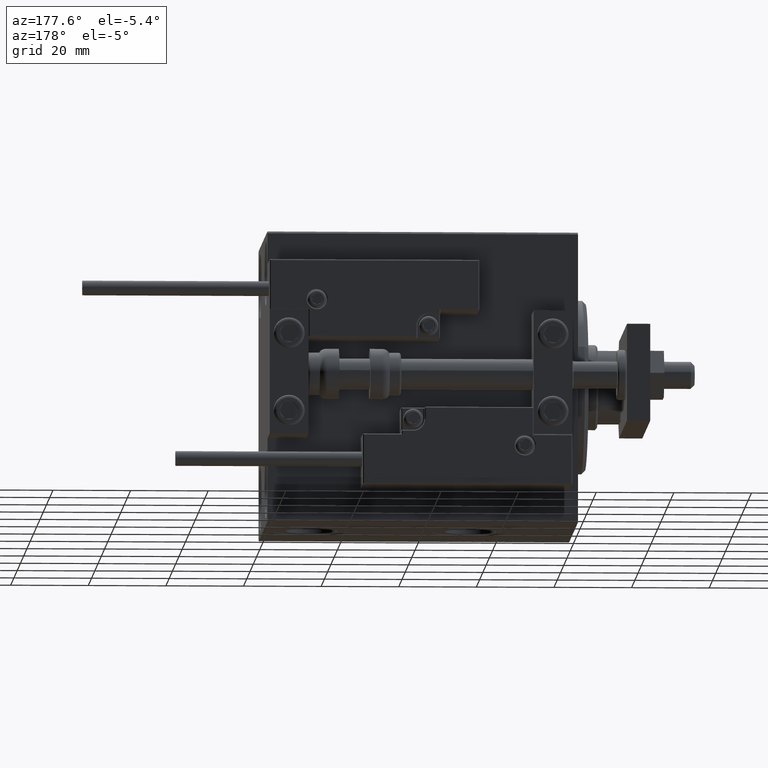
[diagram: clean part render]
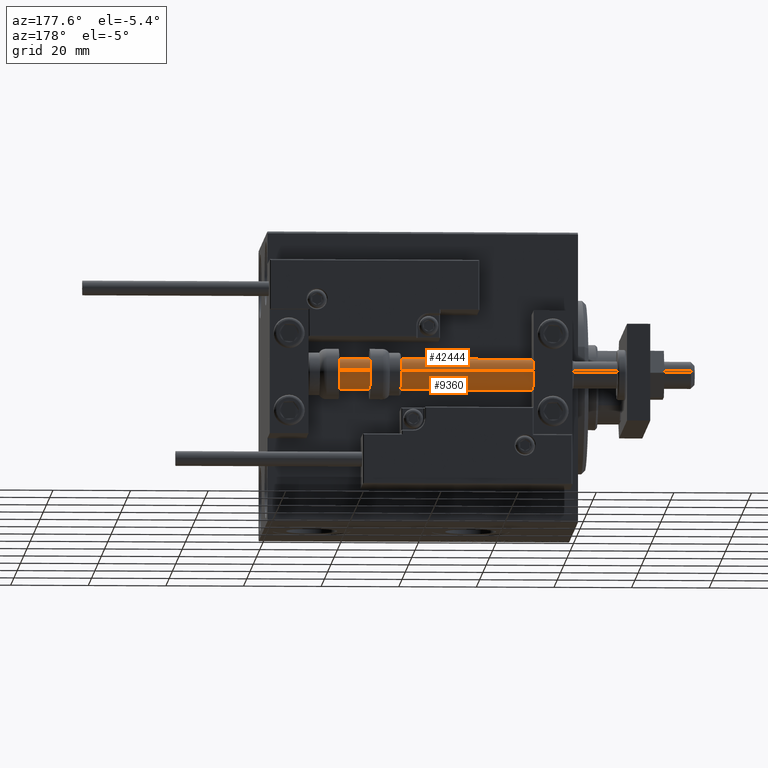
[diagram: same view with one multi-face feature highlighted, each face labeled with its STEP entity id]
A machine part, auxiliary view. The highlighted faces form ONE feature: a constant-radius fillet chain: 2 tangent blend faces with common blend radius 4 mm. The faces share edges in the B-rep.
Their STEP definitions:
[1] entity #42444 (Cylinder):
#416 = ORIENTED_EDGE ( 'NONE', *, *, #43046, .F. ) ;
#2994 = CARTESIAN_POINT ( 'NONE',  ( 0.000000000000000000, 0.000000000000000000, 80.00000000000000000 ) ) ;
#4245 = DIRECTION ( 'NONE',  ( 1.000000000000000000, 0.000000000000000000, 0.000000000000000000 ) ) ;
#5642 = VERTEX_POINT ( 'NONE', #9926 ) ;
#6833 = LINE ( 'NONE', #10422, #9353 ) ;
#9353 = VECTOR ( 'NONE', #36650, 1000.000000000000000 ) ;
#9926 = CARTESIAN_POINT ( 'NONE',  ( 4.000000000000000000, 4.898587196589412829E-16, 80.00000000000000000 ) ) ;
#10422 = CARTESIAN_POINT ( 'NONE',  ( 4.000000000000000000, 4.898587196589412829E-16, 80.00000000000000000 ) ) ;
#11099 = EDGE_CURVE ( 'NONE', #5642, #31913, #6833, .T. ) ;
#12611 = ORIENTED_EDGE ( 'NONE', *, *, #11099, .T. ) ;
#20730 = CARTESIAN_POINT ( 'NONE',  ( 0.000000000000000000, 0.000000000000000000, 2.000000000000029310 ) ) ;
#23048 = CARTESIAN_POINT ( 'NONE',  ( -4.000000000000000000, 0.000000000000000000, 2.000000000000029310 ) ) ;
#24181 = AXIS2_PLACEMENT_3D ( 'NONE', #20730, #40321, #47694 ) ;
#25016 = ORIENTED_EDGE ( 'NONE', *, *, #38889, .F. ) ;
#25292 = DIRECTION ( 'NONE',  ( -1.000000000000000000, 0.000000000000000000, 0.000000000000000000 ) ) ;
#28203 = CIRCLE ( 'NONE', #35559, 4.000000000000000000 ) ;
#28842 = DIRECTION ( 'NONE',  ( -0.000000000000000000, -0.000000000000000000, -1.000000000000000000 ) ) ;
#29273 = CARTESIAN_POINT ( 'NONE',  ( 4.000000000000000000, 4.898587196589412829E-16, 2.000000000000029310 ) ) ;
#29349 = CARTESIAN_POINT ( 'NONE',  ( 0.000000000000000000, 0.000000000000000000, 80.00000000000000000 ) ) ;
#30070 = ORIENTED_EDGE ( 'NONE', *, *, #39254, .T. ) ;
#31913 = VERTEX_POINT ( 'NONE', #29273 ) ;
#33234 = CARTESIAN_POINT ( 'NONE',  ( -4.000000000000000000, 0.000000000000000000, 80.00000000000000000 ) ) ;
#33409 = FACE_OUTER_BOUND ( 'NONE', #48836, .T. ) ;
#35559 = AXIS2_PLACEMENT_3D ( 'NONE', #2994, #39143, #4245 ) ;
#36490 = AXIS2_PLACEMENT_3D ( 'NONE', #29349, #28842, #25292 ) ;
#36650 = DIRECTION ( 'NONE',  ( -0.000000000000000000, -0.000000000000000000, -1.000000000000000000 ) ) ;
#36978 = CYLINDRICAL_SURFACE ( 'NONE', #36490, 4.000000000000000000 ) ;
#37305 = LINE ( 'NONE', #33234, #44636 ) ;
#38596 = VERTEX_POINT ( 'NONE', #39441 ) ;
#38889 = EDGE_CURVE ( 'NONE', #5642, #38596, #28203, .T. ) ;
#39143 = DIRECTION ( 'NONE',  ( 0.000000000000000000, 0.000000000000000000, 1.000000000000000000 ) ) ;
#39254 = EDGE_CURVE ( 'NONE', #31913, #42250, #46127, .T. ) ;
#39441 = CARTESIAN_POINT ( 'NONE',  ( -4.000000000000000000, 0.000000000000000000, 80.00000000000000000 ) ) ;
#40321 = DIRECTION ( 'NONE',  ( -0.000000000000000000, -0.000000000000000000, 1.000000000000000000 ) ) ;
#42250 = VERTEX_POINT ( 'NONE', #23048 ) ;
#42444 = ADVANCED_FACE ( 'NONE', ( #33409 ), #36978, .T. ) ;
#43046 = EDGE_CURVE ( 'NONE', #38596, #42250, #37305, .T. ) ;
#44636 = VECTOR ( 'NONE', #48755, 1000.000000000000000 ) ;
#46127 = CIRCLE ( 'NONE', #24181, 4.000000000000000000 ) ;
#47694 = DIRECTION ( 'NONE',  ( 1.000000000000000000, 0.000000000000000000, 0.000000000000000000 ) ) ;
#48755 = DIRECTION ( 'NONE',  ( -0.000000000000000000, -0.000000000000000000, -1.000000000000000000 ) ) ;
#48836 = EDGE_LOOP ( 'NONE', ( #25016, #12611, #30070, #416 ) ) ;
[2] entity #9360 (Cylinder):
#904 = EDGE_LOOP ( 'NONE', ( #3594, #18404, #11101, #35522 ) ) ;
#2232 = DIRECTION ( 'NONE',  ( 1.000000000000000000, 0.000000000000000000, 0.000000000000000000 ) ) ;
#3594 = ORIENTED_EDGE ( 'NONE', *, *, #11099, .F. ) ;
#3983 = EDGE_CURVE ( 'NONE', #38596, #5642, #18223, .T. ) ;
#4389 = DIRECTION ( 'NONE',  ( -1.000000000000000000, 0.000000000000000000, 0.000000000000000000 ) ) ;
#5642 = VERTEX_POINT ( 'NONE', #9926 ) ;
#6817 = AXIS2_PLACEMENT_3D ( 'NONE', #30322, #46096, #14535 ) ;
#6833 = LINE ( 'NONE', #10422, #9353 ) ;
#7693 = AXIS2_PLACEMENT_3D ( 'NONE', #8930, #24494, #4389 ) ;
#8930 = CARTESIAN_POINT ( 'NONE',  ( 0.000000000000000000, 0.000000000000000000, 80.00000000000000000 ) ) ;
#9353 = VECTOR ( 'NONE', #36650, 1000.000000000000000 ) ;
#9360 = ADVANCED_FACE ( 'NONE', ( #47893 ), #48135, .T. ) ;
#9459 = CIRCLE ( 'NONE', #44442, 4.000000000000000000 ) ;
#9857 = DIRECTION ( 'NONE',  ( -0.000000000000000000, -0.000000000000000000, 1.000000000000000000 ) ) ;
#9926 = CARTESIAN_POINT ( 'NONE',  ( 4.000000000000000000, 4.898587196589412829E-16, 80.00000000000000000 ) ) ;
#10422 = CARTESIAN_POINT ( 'NONE',  ( 4.000000000000000000, 4.898587196589412829E-16, 80.00000000000000000 ) ) ;
#11099 = EDGE_CURVE ( 'NONE', #5642, #31913, #6833, .T. ) ;
#11101 = ORIENTED_EDGE ( 'NONE', *, *, #43046, .T. ) ;
#14535 = DIRECTION ( 'NONE',  ( 1.000000000000000000, 0.000000000000000000, 0.000000000000000000 ) ) ;
#18223 = CIRCLE ( 'NONE', #6817, 4.000000000000000000 ) ;
#18404 = ORIENTED_EDGE ( 'NONE', *, *, #3983, .F. ) ;
#23048 = CARTESIAN_POINT ( 'NONE',  ( -4.000000000000000000, 0.000000000000000000, 2.000000000000029310 ) ) ;
#24494 = DIRECTION ( 'NONE',  ( -0.000000000000000000, -0.000000000000000000, -1.000000000000000000 ) ) ;
#25166 = CARTESIAN_POINT ( 'NONE',  ( 0.000000000000000000, 0.000000000000000000, 2.000000000000029310 ) ) ;
#29273 = CARTESIAN_POINT ( 'NONE',  ( 4.000000000000000000, 4.898587196589412829E-16, 2.000000000000029310 ) ) ;
#30322 = CARTESIAN_POINT ( 'NONE',  ( 0.000000000000000000, 0.000000000000000000, 80.00000000000000000 ) ) ;
#31913 = VERTEX_POINT ( 'NONE', #29273 ) ;
#33234 = CARTESIAN_POINT ( 'NONE',  ( -4.000000000000000000, 0.000000000000000000, 80.00000000000000000 ) ) ;
#35522 = ORIENTED_EDGE ( 'NONE', *, *, #50184, .T. ) ;
#36650 = DIRECTION ( 'NONE',  ( -0.000000000000000000, -0.000000000000000000, -1.000000000000000000 ) ) ;
#37305 = LINE ( 'NONE', #33234, #44636 ) ;
#38596 = VERTEX_POINT ( 'NONE', #39441 ) ;
#39441 = CARTESIAN_POINT ( 'NONE',  ( -4.000000000000000000, 0.000000000000000000, 80.00000000000000000 ) ) ;
#42250 = VERTEX_POINT ( 'NONE', #23048 ) ;
#43046 = EDGE_CURVE ( 'NONE', #38596, #42250, #37305, .T. ) ;
#44442 = AXIS2_PLACEMENT_3D ( 'NONE', #25166, #9857, #2232 ) ;
#44636 = VECTOR ( 'NONE', #48755, 1000.000000000000000 ) ;
#46096 = DIRECTION ( 'NONE',  ( 0.000000000000000000, 0.000000000000000000, 1.000000000000000000 ) ) ;
#47893 = FACE_OUTER_BOUND ( 'NONE', #904, .T. ) ;
#48135 = CYLINDRICAL_SURFACE ( 'NONE', #7693, 4.000000000000000000 ) ;
#48755 = DIRECTION ( 'NONE',  ( -0.000000000000000000, -0.000000000000000000, -1.000000000000000000 ) ) ;
#50184 = EDGE_CURVE ( 'NONE', #42250, #31913, #9459, .T. ) ;